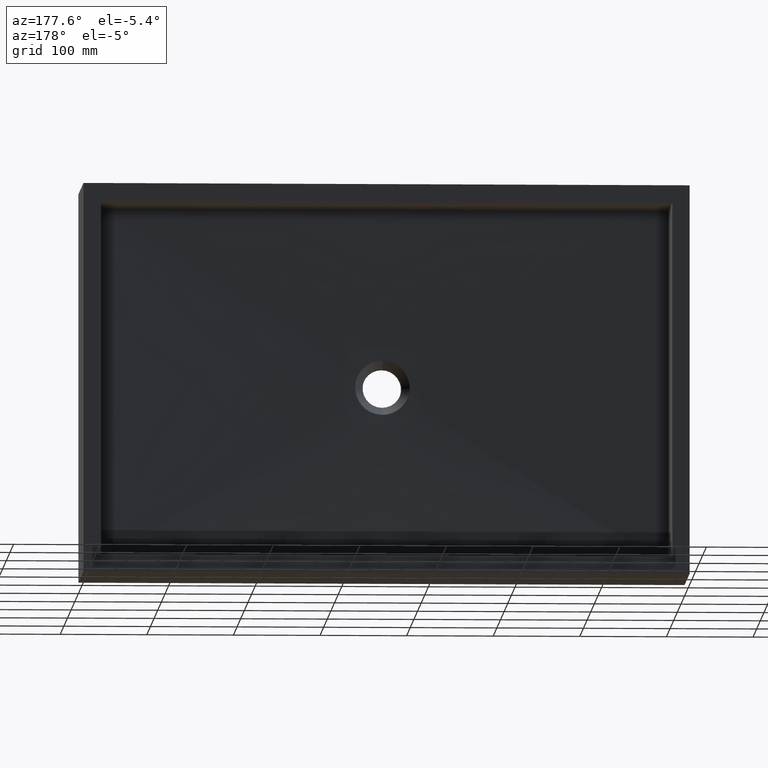
[diagram: clean part render]
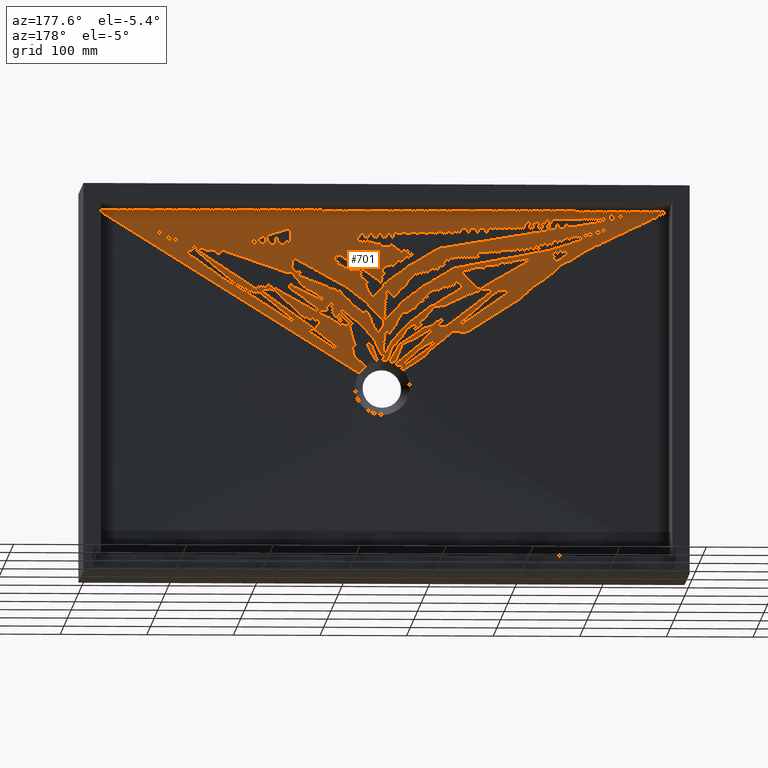
[diagram: same view with one face highlighted and labeled with its STEP entity id]
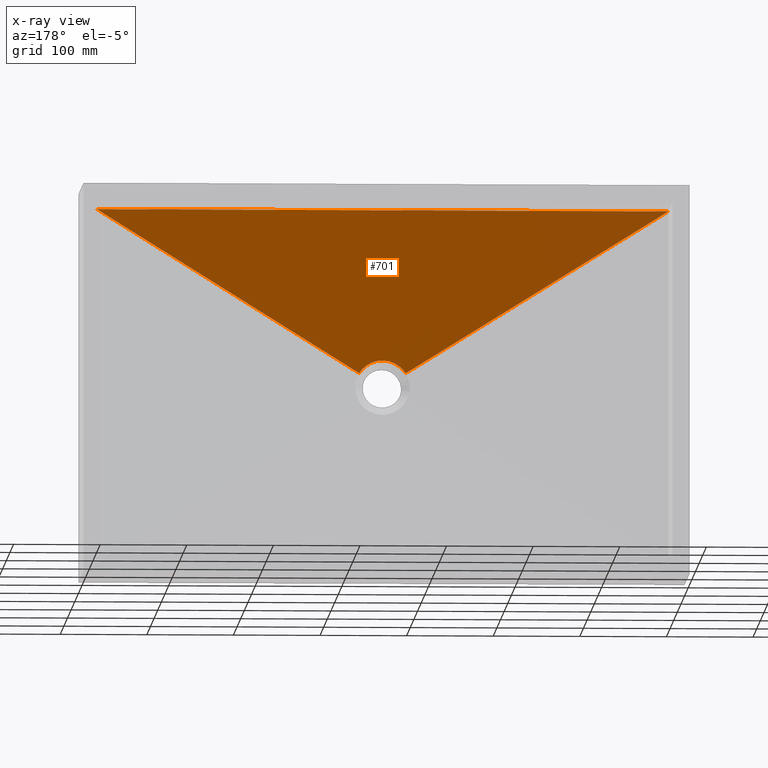
[diagram: x-ray of the same camera — body ghosted, the highlighted face saturated]
A machine part, auxiliary view. The second image highlights one B-rep face of the part: STEP entity #701.
The next image is the same camera in x-ray: the body ghosted, the highlighted face saturated — about 0% of this face is hidden behind the body in this view.
In plain terms, the highlighted face is a freeform B-spline surface patch.
Its self-contained STEP definition (entity closure, byte-faithful):
#9 = CARTESIAN_POINT ( 'NONE',  ( 359.9691197937191900, 25.00000000000000400, -195.0848360718217100 ) ) ;
#35 = ORIENTED_EDGE ( 'NONE', *, *, #690, .T. ) ;
#40 = CARTESIAN_POINT ( 'NONE',  ( 253.7499999999998000, 30.00000000000000000, -20.00000000000000000 ) ) ;
#47 = CARTESIAN_POINT ( 'NONE',  ( 459.9999999999997700, 30.00000000000000000, -20.00000000000000000 ) ) ;
#60 = CARTESIAN_POINT ( 'NONE',  ( 47.49999999999995700, 30.00000000000000400, -19.99999999999999600 ) ) ;
#85 = CARTESIAN_POINT ( 'NONE',  ( 74.99999999999992900, 30.00000000000000400, -19.99999999999999600 ) ) ;
#97 = CARTESIAN_POINT ( 'NONE',  ( 323.2426005924004400, 25.00000000000000000, -208.3779791558851900 ) ) ;
#111 = CARTESIAN_POINT ( 'NONE',  ( 362.5889311173761500, 25.00000000000000000, -196.1249447910145700 ) ) ;
#120 = CARTESIAN_POINT ( 'NONE',  ( 239.9999999999997700, 30.00000000000000000, -20.00000000000000000 ) ) ;
#126 = CARTESIAN_POINT ( 'NONE',  ( 342.7861324856808700, 24.99999999999999600, -194.3037380484666700 ) ) ;
#141 = VERTEX_POINT ( 'NONE', #111 ) ;
#145 = CARTESIAN_POINT ( 'NONE',  ( 367.4188086296505800, 25.00000000000000400, -198.7193843141965300 ) ) ;
#155 = ORIENTED_EDGE ( 'NONE', *, *, #892, .F. ) ;
#164 = CARTESIAN_POINT ( 'NONE',  ( 349.9999999999507700, 25.00000000000000000, -193.5000000000000600 ) ) ;
#165 = EDGE_LOOP ( 'NONE', ( #593, #35, #1106, #1019, #853, #155 ) ) ;
#171 = CARTESIAN_POINT ( 'NONE',  ( 361.3067226189591000, 25.00000000000000000, -195.5659282217977200 ) ) ;
#175 = VECTOR ( 'NONE', #533, 1000.000000000000000 ) ;
#193 = VERTEX_POINT ( 'NONE', #497 ) ;
#194 = CARTESIAN_POINT ( 'NONE',  ( 116.2499999999998700, 30.00000000000000400, -19.99999999999999600 ) ) ;
#196 = CARTESIAN_POINT ( 'NONE',  ( 357.2138675143191900, 25.00000000000000400, -194.3037380484666700 ) ) ;
#203 = CARTESIAN_POINT ( 'NONE',  ( 294.9999999999997700, 30.00000000000000000, -19.99999999999999600 ) ) ;
#204 = CARTESIAN_POINT ( 'NONE',  ( 351.4595848680684200, 24.99999999999999300, -193.5000000000000300 ) ) ;
#206 = CARTESIAN_POINT ( 'NONE',  ( 322.4999999999997700, 30.00000000000000000, -19.99999999999999600 ) ) ;
#208 = CARTESIAN_POINT ( 'NONE',  ( 365.0979135782726500, 24.99999999999999600, -197.3207901036842300 ) ) ;
#209 = LINE ( 'NONE', #978, #307 ) ;
#231 = CARTESIAN_POINT ( 'NONE',  ( 323.2426005924004400, 25.00000000000000000, -208.3779791558851900 ) ) ;
#233 = CARTESIAN_POINT ( 'NONE',  ( 348.5404151319314700, 25.00000000000000000, -193.5000000000000000 ) ) ;
#246 = CARTESIAN_POINT ( 'NONE',  ( 129.9999999999998300, 30.00000000000000000, -20.00000000000000000 ) ) ;
#248 = CARTESIAN_POINT ( 'NONE',  ( 348.5404151319051500, 25.00000000000000000, -193.5000000000018500 ) ) ;
#252 = CARTESIAN_POINT ( 'NONE',  ( 349.9999999999507700, 25.00000000000000000, -193.5000000000000600 ) ) ;
#253 = CARTESIAN_POINT ( 'NONE',  ( 363.7499999999997200, 30.00000000000000000, -19.99999999999999600 ) ) ;
#260 = CARTESIAN_POINT ( 'NONE',  ( 344.2036955465532600, 25.00000000000000000, -194.0038259158104900 ) ) ;
#264 = CARTESIAN_POINT ( 'NONE',  ( 347.0808977343130600, 24.99999999999999300, -193.6019300730625900 ) ) ;
#283 = CARTESIAN_POINT ( 'NONE',  ( 362.5889311173761500, 25.00000000000000000, -196.1249447910145700 ) ) ;
#291 = CARTESIAN_POINT ( 'NONE',  ( 363.8711393984656900, 24.99999999999999600, -196.6839612654810600 ) ) ;
#305 = CARTESIAN_POINT ( 'NONE',  ( 336.2499999999997700, 30.00000000000000000, -19.99999999999999600 ) ) ;
#306 = CARTESIAN_POINT ( 'NONE',  ( 344.2036955465532600, 25.00000000000000000, -194.0038259158104900 ) ) ;
#307 = VECTOR ( 'NONE', #508, 1000.000000000000100 ) ;
#309 = FACE_OUTER_BOUND ( 'NONE', #165, .T. ) ;
#336 = CARTESIAN_POINT ( 'NONE',  ( 20.00000000000000000, 30.00000000000000400, -20.00000000000000000 ) ) ;
#338 = CARTESIAN_POINT ( 'NONE',  ( 338.6932773810411300, 25.00000000000000400, -195.5659282217976600 ) ) ;
#342 = CARTESIAN_POINT ( 'NONE',  ( 342.7861324856808700, 24.99999999999999600, -194.3037380484666700 ) ) ;
#343 = CARTESIAN_POINT ( 'NONE',  ( 368.5129350790387000, 24.99999999999998900, -199.4810416880197300 ) ) ;
#345 = CARTESIAN_POINT ( 'NONE',  ( 324.4192197741131200, 25.00000000000000000, -206.4839092536157900 ) ) ;
#348 = CARTESIAN_POINT ( 'NONE',  ( 351.4595848680421600, 24.99999999999999300, -193.4999999999982100 ) ) ;
#359 = CARTESIAN_POINT ( 'NONE',  ( 323.2426005924004400, 25.00000000000000000, -208.3779791558851900 ) ) ;
#380 = CARTESIAN_POINT ( 'NONE',  ( 171.6213002962002500, 27.50000000000000400, -114.1889895779425900 ) ) ;
#382 = B_SPLINE_CURVE_WITH_KNOTS ( 'NONE', 3,
 ( #164, #248, #264, #260, #342, #466, #464, #816, #825, #791, #734, #760, #548, #471, #492, #359 ),
 .UNSPECIFIED., .F., .F.,
 ( 4, 2, 2, 2, 2, 2, 2, 4 ),
 ( 0.0000000000000000000, 0.1250000000000000000, 0.2500000000000000000, 0.3750000000000000000, 0.5000000000000000000, 0.6250000000000000000, 0.7500000000000000000, 1.000000000000000000 ),
 .UNSPECIFIED. ) ;
#386 = CARTESIAN_POINT ( 'NONE',  ( 528.7499999999998900, 30.00000000000000700, -20.00000000000000400 ) ) ;
#392 = CARTESIAN_POINT ( 'NONE',  ( 355.7963044534469100, 24.99999999999999300, -194.0038259158104700 ) ) ;
#394 = VERTEX_POINT ( 'NONE', #231 ) ;
#399 = CARTESIAN_POINT ( 'NONE',  ( 501.2499999999998900, 30.00000000000000400, -20.00000000000000400 ) ) ;
#404 = CARTESIAN_POINT ( 'NONE',  ( 370.5562178726420900, 24.99999999999999300, -201.0962784206776900 ) ) ;
#406 = CARTESIAN_POINT ( 'NONE',  ( 487.4999999999998900, 30.00000000000000000, -20.00000000000000400 ) ) ;
#411 = VERTEX_POINT ( 'NONE', #569 ) ;
#414 = CARTESIAN_POINT ( 'NONE',  ( 331.4870649209615300, 24.99999999999999300, -199.4810416880197300 ) ) ;
#428 = CARTESIAN_POINT ( 'NONE',  ( 368.5129350790387000, 24.99999999999998900, -199.4810416880197300 ) ) ;
#430 = CARTESIAN_POINT ( 'NONE',  ( 542.4999999999998900, 30.00000000000000700, -20.00000000000000400 ) ) ;
#447 = CARTESIAN_POINT ( 'NONE',  ( 370.5562178726420900, 24.99999999999999300, -201.0962784206776900 ) ) ;
#462 = CARTESIAN_POINT ( 'NONE',  ( 371.5054143469317900, 25.00000000000000000, -201.9497704299599500 ) ) ;
#464 = CARTESIAN_POINT ( 'NONE',  ( 338.6932773810411300, 25.00000000000000400, -195.5659282217976600 ) ) ;
#466 = CARTESIAN_POINT ( 'NONE',  ( 340.0308802062809800, 25.00000000000000400, -195.0848360718217100 ) ) ;
#471 = CARTESIAN_POINT ( 'NONE',  ( 325.8697062781246200, 24.99999999999999600, -204.5999352266943000 ) ) ;
#477 = CARTESIAN_POINT ( 'NONE',  ( 362.5889311173761500, 25.00000000000000000, -196.1249447910145700 ) ) ;
#481 = CARTESIAN_POINT ( 'NONE',  ( 376.7573994075996200, 25.00000000000000000, -208.3779791558851900 ) ) ;
#488 = EDGE_CURVE ( 'NONE', #867, #394, #382, .T. ) ;
#492 = CARTESIAN_POINT ( 'NONE',  ( 324.4192197741131200, 25.00000000000000000, -206.4839092536157900 ) ) ;
#497 = CARTESIAN_POINT ( 'NONE',  ( 679.9999999999998900, 30.00000000000002800, -20.00000000000000000 ) ) ;
#501 = CARTESIAN_POINT ( 'NONE',  ( 652.5000000000000000, 30.00000000000000700, -20.00000000000000400 ) ) ;
#507 = CARTESIAN_POINT ( 'NONE',  ( 376.7573994075996200, 25.00000000000000000, -208.3779791558851900 ) ) ;
#508 = DIRECTION ( 'NONE',  ( 0.8493579470568616300, 0.01400459476006333700, 0.5276314519595660700 ) ) ;
#519 = CARTESIAN_POINT ( 'NONE',  ( 679.9999999999998900, 30.00000000000000400, -20.00000000000000000 ) ) ;
#532 = CARTESIAN_POINT ( 'NONE',  ( 375.5807802258868300, 25.00000000000000000, -206.4839092536158200 ) ) ;
#533 = DIRECTION ( 'NONE',  ( 0.8493579470568617400, -0.01400459476006333400, -0.5276314519595658400 ) ) ;
#535 = CARTESIAN_POINT ( 'NONE',  ( 374.1302937218754900, 25.00000000000000400, -204.5999352266943800 ) ) ;
#548 = CARTESIAN_POINT ( 'NONE',  ( 328.4945856530685000, 25.00000000000000400, -201.9497704299599800 ) ) ;
#555 = CARTESIAN_POINT ( 'NONE',  ( 332.5811913703493600, 25.00000000000000400, -198.7193843141965000 ) ) ;
#556 = CARTESIAN_POINT ( 'NONE',  ( 329.4437821273580200, 24.99999999999999300, -201.0962784206777200 ) ) ;
#557 = CARTESIAN_POINT ( 'NONE',  ( 171.2499999999998300, 30.00000000000000000, -20.00000000000000400 ) ) ;
#569 = CARTESIAN_POINT ( 'NONE',  ( 376.7573994075996200, 25.00000000000000000, -208.3779791558851900 ) ) ;
#582 = CARTESIAN_POINT ( 'NONE',  ( 371.5054143469317900, 25.00000000000000000, -201.9497704299599500 ) ) ;
#588 = EDGE_CURVE ( 'NONE', #411, #141, #1131, .T. ) ;
#593 = ORIENTED_EDGE ( 'NONE', *, *, #588, .T. ) ;
#595 = CARTESIAN_POINT ( 'NONE',  ( 374.1302937218754900, 25.00000000000000400, -204.5999352266943800 ) ) ;
#609 = EDGE_CURVE ( 'NONE', #1060, #394, #1015, .T. ) ;
#613 = CARTESIAN_POINT ( 'NONE',  ( 340.0308802062809800, 25.00000000000000400, -195.0848360718217100 ) ) ;
#634 = CARTESIAN_POINT ( 'NONE',  ( 569.9999999999998900, 30.00000000000000700, -20.00000000000000400 ) ) ;
#638 = CARTESIAN_POINT ( 'NONE',  ( 583.7500000000000000, 30.00000000000001100, -20.00000000000000400 ) ) ;
#666 = CARTESIAN_POINT ( 'NONE',  ( 352.9191022656611900, 25.00000000000000000, -193.6019300730589500 ) ) ;
#690 = EDGE_CURVE ( 'NONE', #141, #867, #1137, .T. ) ;
#701 = ADVANCED_FACE ( 'NONE', ( #309 ), #1155, .F. ) ;
#734 = CARTESIAN_POINT ( 'NONE',  ( 331.4870649209615300, 24.99999999999999300, -199.4810416880197300 ) ) ;
#760 = CARTESIAN_POINT ( 'NONE',  ( 329.4437821273580200, 24.99999999999999300, -201.0962784206777200 ) ) ;
#776 = CARTESIAN_POINT ( 'NONE',  ( 334.9020864217273500, 24.99999999999999300, -197.3207901036842900 ) ) ;
#780 = CARTESIAN_POINT ( 'NONE',  ( 365.0979135782726500, 24.99999999999999600, -197.3207901036842300 ) ) ;
#791 = CARTESIAN_POINT ( 'NONE',  ( 332.5811913703493600, 25.00000000000000400, -198.7193843141965000 ) ) ;
#800 = DIRECTION ( 'NONE',  ( -1.000000000000000000, -0.0000000000000000000, -1.261617073437679700E-016 ) ) ;
#808 = CARTESIAN_POINT ( 'NONE',  ( 446.2499999999998300, 30.00000000000000000, -19.99999999999999600 ) ) ;
#809 = CARTESIAN_POINT ( 'NONE',  ( 359.9691197937191900, 25.00000000000000400, -195.0848360718217100 ) ) ;
#814 = CARTESIAN_POINT ( 'NONE',  ( 361.3067226189591000, 25.00000000000000000, -195.5659282217977200 ) ) ;
#816 = CARTESIAN_POINT ( 'NONE',  ( 336.1288606015344800, 25.00000000000000000, -196.6839612654810300 ) ) ;
#825 = CARTESIAN_POINT ( 'NONE',  ( 334.9020864217273500, 24.99999999999999300, -197.3207901036842900 ) ) ;
#826 = CARTESIAN_POINT ( 'NONE',  ( 157.4999999999998000, 30.00000000000000000, -20.00000000000000400 ) ) ;
#828 = CARTESIAN_POINT ( 'NONE',  ( 352.9191022656741600, 25.00000000000000000, -193.6019300730607700 ) ) ;
#853 = ORIENTED_EDGE ( 'NONE', *, *, #1005, .F. ) ;
#860 = CARTESIAN_POINT ( 'NONE',  ( 367.4188086296505800, 25.00000000000000400, -198.7193843141965300 ) ) ;
#862 = VECTOR ( 'NONE', #800, 1000.000000000000000 ) ;
#867 = VERTEX_POINT ( 'NONE', #252 ) ;
#868 = CARTESIAN_POINT ( 'NONE',  ( 198.7499999999998300, 30.00000000000000000, -20.00000000000000400 ) ) ;
#873 = CARTESIAN_POINT ( 'NONE',  ( 625.0000000000000000, 30.00000000000001100, -20.00000000000000400 ) ) ;
#876 = CARTESIAN_POINT ( 'NONE',  ( 328.4945856530685000, 25.00000000000000400, -201.9497704299599800 ) ) ;
#892 = EDGE_CURVE ( 'NONE', #411, #193, #209, .T. ) ;
#896 = CARTESIAN_POINT ( 'NONE',  ( 377.4999999999997700, 30.00000000000000000, -19.99999999999999600 ) ) ;
#920 = CARTESIAN_POINT ( 'NONE',  ( 355.7963044534469100, 24.99999999999999300, -194.0038259158104700 ) ) ;
#944 = CARTESIAN_POINT ( 'NONE',  ( 418.7499999999997700, 30.00000000000000000, -19.99999999999999600 ) ) ;
#953 = CARTESIAN_POINT ( 'NONE',  ( 357.2138675143191900, 25.00000000000000400, -194.3037380484666700 ) ) ;
#959 = CARTESIAN_POINT ( 'NONE',  ( 404.9999999999998300, 30.00000000000000000, -19.99999999999999600 ) ) ;
#978 = CARTESIAN_POINT ( 'NONE',  ( 528.3786997037998400, 27.50000000000000400, -114.1889895779425900 ) ) ;
#1005 = EDGE_CURVE ( 'NONE', #193, #1060, #1112, .T. ) ;
#1015 = LINE ( 'NONE', #380, #175 ) ;
#1019 = ORIENTED_EDGE ( 'NONE', *, *, #609, .F. ) ;
#1021 = CARTESIAN_POINT ( 'NONE',  ( 349.9999999999507700, 25.00000000000000000, -193.5000000000000600 ) ) ;
#1060 = VERTEX_POINT ( 'NONE', #1203 ) ;
#1080 = CARTESIAN_POINT ( 'NONE',  ( 281.2499999999997700, 30.00000000000000000, -19.99999999999999600 ) ) ;
#1106 = ORIENTED_EDGE ( 'NONE', *, *, #488, .T. ) ;
#1112 = LINE ( 'NONE', #1173, #862 ) ;
#1128 = CARTESIAN_POINT ( 'NONE',  ( 347.0808977343260700, 24.99999999999999300, -193.6019300730607700 ) ) ;
#1131 = B_SPLINE_CURVE_WITH_KNOTS ( 'NONE', 3,
 ( #481, #1240, #535, #462, #404, #343, #860, #780, #291, #477 ),
 .UNSPECIFIED., .F., .F.,
 ( 4, 2, 2, 2, 4 ),
 ( 0.0000000000000000000, 0.4000000022599271000, 0.6000000033898906800, 0.8000000045198542000, 1.000000000000000000 ),
 .UNSPECIFIED. ) ;
#1137 = B_SPLINE_CURVE_WITH_KNOTS ( 'NONE', 3,
 ( #283, #171, #9, #196, #392, #666, #348, #1021 ),
 .UNSPECIFIED., .F., .F.,
 ( 4, 2, 2, 4 ),
 ( 0.0000000000000000000, 0.3333333396109085000, 0.6666666698054541900, 1.000000000000000000 ),
 .UNSPECIFIED. ) ;
#1155 = B_SPLINE_SURFACE_WITH_KNOTS ( 'NONE', 3, 1, ( 
 ( #97, #336 ),
 ( #345, #60 ),
 ( #1237, #85 ),
 ( #876, #194 ),
 ( #556, #246 ),
 ( #414, #826 ),
 ( #555, #557 ),
 ( #776, #868 ),
 ( #1198, #1213 ),
 ( #338, #120 ),
 ( #613, #40 ),
 ( #126, #1080 ),
 ( #306, #203 ),
 ( #1128, #206 ),
 ( #233, #305 ),
 ( #204, #253 ),
 ( #828, #896 ),
 ( #920, #959 ),
 ( #953, #944 ),
 ( #809, #808 ),
 ( #814, #47 ),
 ( #1189, #406 ),
 ( #208, #399 ),
 ( #145, #386 ),
 ( #428, #430 ),
 ( #447, #634 ),
 ( #582, #638 ),
 ( #595, #873 ),
 ( #532, #501 ),
 ( #507, #519 ) ),
 .UNSPECIFIED., .F., .F., .F.,
 ( 4, 2, 2, 2, 2, 2, 2, 2, 2, 2, 2, 2, 2, 2, 4 ),
 ( 2, 2 ),
 ( 0.0000000000000000000, 0.1250000000000000000, 0.1875000000000000000, 0.2500000000000000000, 0.3125000000000000000, 0.3750000000000000000, 0.4375000000000000000, 0.5000000000000000000, 0.5625000000000000000, 0.6250000000000000000, 0.6875000000000000000, 0.7500000000000000000, 0.8125000000000000000, 0.8750000000000000000, 1.000000000000000000 ),
 ( 0.0000000000000000000, 1.000000000000000000 ),
 .UNSPECIFIED. ) ;
#1173 = CARTESIAN_POINT ( 'NONE',  ( 349.9999999999997700, 30.00000000000000000, -19.99999999999999600 ) ) ;
#1189 = CARTESIAN_POINT ( 'NONE',  ( 363.8711393984656900, 24.99999999999999600, -196.6839612654810600 ) ) ;
#1198 = CARTESIAN_POINT ( 'NONE',  ( 336.1288606015344800, 25.00000000000000000, -196.6839612654810300 ) ) ;
#1203 = CARTESIAN_POINT ( 'NONE',  ( 20.00000000000000000, 30.00000000000002800, -20.00000000000000000 ) ) ;
#1213 = CARTESIAN_POINT ( 'NONE',  ( 212.4999999999998000, 30.00000000000000000, -20.00000000000000400 ) ) ;
#1237 = CARTESIAN_POINT ( 'NONE',  ( 325.8697062781246200, 24.99999999999999600, -204.5999352266943000 ) ) ;
#1240 = CARTESIAN_POINT ( 'NONE',  ( 375.5807802258868300, 25.00000000000000000, -206.4839092536158200 ) ) ;